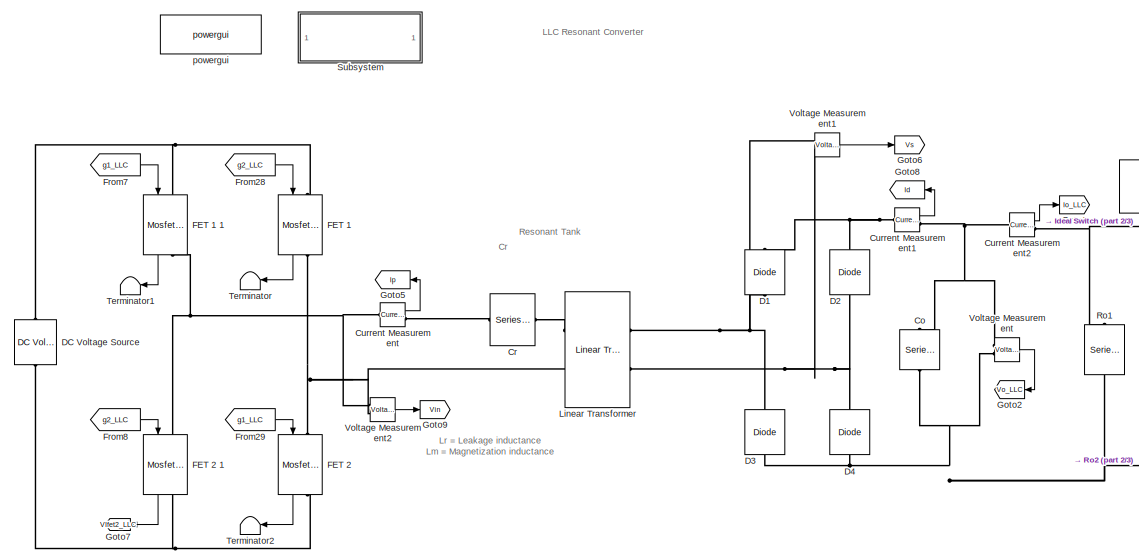
[diagram: root canvas - part 1/3, central region]
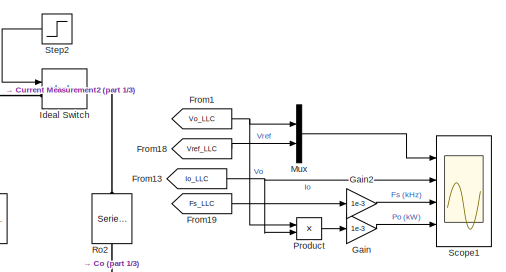
[diagram: root canvas - part 2/3, middle right region]
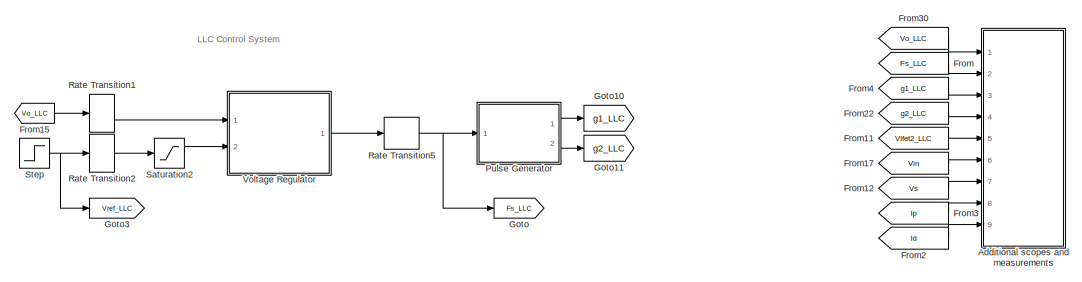
[diagram: root canvas - part 3/3, bottom center region]
MODEL slx_c3d7293f107d
KIND model
CONFIG AbsTol = auto
CONFIG EnableMultiTasking = on
CONFIG FixedStep = Ts_Power
CONFIG MaxStep = 1e-7
CONFIG MinStep = auto
CONFIG PreLoadFcn = LLC_Resonant_Converter_v1_data\n
CONFIG RelTol = 1e-4
CONFIG SampleTimeConstraint = Unconstrained
CONFIG SolverName = FixedStepDiscrete
CONFIG StartTime = 0.0
CONFIG StopTime = 0.3
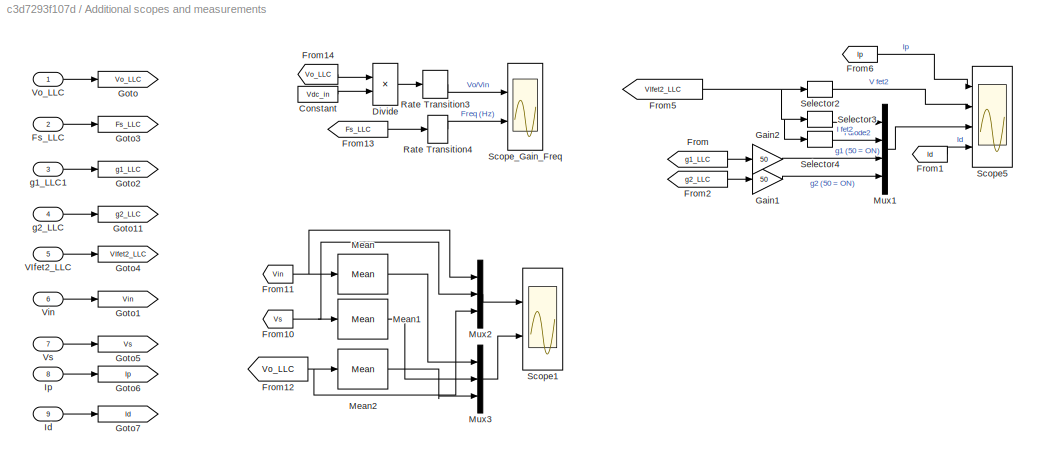
BLOCK [SubSystem] Additional scopes and measurements
  Ports = [9]
BLOCK [Constant] Additional scopes and measurements/Constant
  Value = Vdc_in
BLOCK [Product] Additional scopes and measurements/Divide
  Inputs = */
  Ports = [2, 1]
BLOCK [From] Additional scopes and measurements/From
  GotoTag = g1_LLC
BLOCK [From] Additional scopes and measurements/From1
  GotoTag = Id
BLOCK [From] Additional scopes and measurements/From10
  GotoTag = Vs
BLOCK [From] Additional scopes and measurements/From11
  GotoTag = Vin
BLOCK [From] Additional scopes and measurements/From12
  GotoTag = Vo_LLC
BLOCK [From] Additional scopes and measurements/From13
  GotoTag = Fs_LLC
BLOCK [From] Additional scopes and measurements/From14
  GotoTag = Vo_LLC
BLOCK [From] Additional scopes and measurements/From2
  GotoTag = g2_LLC
BLOCK [From] Additional scopes and measurements/From5
  GotoTag = VIfet2_LLC
BLOCK [From] Additional scopes and measurements/From6
  GotoTag = Ip
BLOCK [Inport] Additional scopes and measurements/Fs_LLC
  Port = 2
BLOCK [Gain] Additional scopes and measurements/Gain1
  Gain = 50
BLOCK [Gain] Additional scopes and measurements/Gain2
  Gain = 50
BLOCK [Goto] Additional scopes and measurements/Goto
  GotoTag = Vo_LLC
BLOCK [Goto] Additional scopes and measurements/Goto1
  GotoTag = Vin
BLOCK [Goto] Additional scopes and measurements/Goto11
  GotoTag = g2_LLC
BLOCK [Goto] Additional scopes and measurements/Goto2
  GotoTag = g1_LLC
BLOCK [Goto] Additional scopes and measurements/Goto3
  GotoTag = Fs_LLC
BLOCK [Goto] Additional scopes and measurements/Goto4
  GotoTag = VIfet2_LLC
BLOCK [Goto] Additional scopes and measurements/Goto5
  GotoTag = Vs
BLOCK [Goto] Additional scopes and measurements/Goto6
  GotoTag = Ip
BLOCK [Goto] Additional scopes and measurements/Goto7
  GotoTag = Id
BLOCK [Inport] Additional scopes and measurements/Id
  Port = 9
BLOCK [Inport] Additional scopes and measurements/Ip
  Port = 8
BLOCK [Reference] Additional scopes and measurements/Mean  REF=spsMeanLib/Mean
  Ports = [1, 1]
  SourceBlock = spsMeanLib/Mean
  SourceType = Mean
BLOCK [Reference] Additional scopes and measurements/Mean1  REF=spsMeanLib/Mean
  Ports = [1, 1]
  SourceBlock = spsMeanLib/Mean
  SourceType = Mean
BLOCK [Reference] Additional scopes and measurements/Mean2  REF=spsMeanLib/Mean
  Ports = [1, 1]
  SourceBlock = spsMeanLib/Mean
  SourceType = Mean
BLOCK [Mux] Additional scopes and measurements/Mux1
  DisplayOption = bar
  Ports = [4, 1]
BLOCK [Mux] Additional scopes and measurements/Mux2
  DisplayOption = bar
  Inputs = 3
  Ports = [3, 1]
BLOCK [Mux] Additional scopes and measurements/Mux3
  DisplayOption = bar
  Inputs = 3
  Ports = [3, 1]
BLOCK [RateTransition] Additional scopes and measurements/Rate Transition3
  OutPortSampleTime = Ts_Power*100
BLOCK [RateTransition] Additional scopes and measurements/Rate Transition4
  OutPortSampleTime = Ts_Power*100
BLOCK [Scope] Additional scopes and measurements/Scope1
  Floating = off
  NumInputPorts = 2
  Ports = [2]
  ScopeSpecificationString = Simulink.scopes.TimeScopeBlockCfg('CurrentConfiguration', extmgr.ConfigurationSet(extmgr.Configuration('Core','General UI',true),extmgr.Configuration('Core','Source UI',true),extmgr.Configuration('Sources','WiredSimulink',true,'DataLoggingVariableName','ScopeData1','DataLoggingDecimation','10'),extmgr.Configuration('Visuals','Time Domain',true,'SerializedDisplays',{struct('MinYLimReal','-856.17057...<+2117ch>
BLOCK [Scope] Additional scopes and measurements/Scope5
  Floating = off
  NumInputPorts = 4
  Ports = [4]
  ScopeSpecificationString = Simulink.scopes.TimeScopeBlockCfg('CurrentConfiguration', extmgr.ConfigurationSet(extmgr.Configuration('Core','General UI',true),extmgr.Configuration('Core','Source UI',true),extmgr.Configuration('Sources','WiredSimulink',true,'DataLoggingVariableName','ScopeData1','DataLoggingDecimation','1','DataLoggingSaveFormat','StructureWithTime'),extmgr.Configuration('Visuals','Time Domain',true,'Serialized...<+4239ch>
BLOCK [Scope] Additional scopes and measurements/Scope_Gain_Freq
  Floating = off
  NumInputPorts = 2
  Ports = [2]
  ScopeSpecificationString = Simulink.scopes.TimeScopeBlockCfg('CurrentConfiguration', extmgr.ConfigurationSet(extmgr.Configuration('Core','General UI',true),extmgr.Configuration('Core','Source UI',true),extmgr.Configuration('Sources','WiredSimulink',true,'DataLoggingVariableName','ScopeData2','DataLoggingDecimation','10','DataLoggingSaveFormat','StructureWithTime'),extmgr.Configuration('Visuals','Time Domain',true,'Serialize...<+2152ch>
BLOCK [Selector] Additional scopes and measurements/Selector2
  IndexOptions = Index vector (dialog)
  Indices = 2
  InputPortWidth = 3
  OutputSizes = 1
  Ports = [1, 1]
BLOCK [Selector] Additional scopes and measurements/Selector3
  IndexOptions = Index vector (dialog)
  Indices = 1
  InputPortWidth = 3
  OutputSizes = 1
  Ports = [1, 1]
BLOCK [Selector] Additional scopes and measurements/Selector4
  IndexOptions = Index vector (dialog)
  Indices = 3
  InputPortWidth = 3
  OutputSizes = 1
  Ports = [1, 1]
BLOCK [Inport] Additional scopes and measurements/VIfet2_LLC
  Port = 5
BLOCK [Inport] Additional scopes and measurements/Vin
  Port = 6
BLOCK [Inport] Additional scopes and measurements/Vo_LLC
BLOCK [Inport] Additional scopes and measurements/Vs
  Port = 7
BLOCK [Inport] Additional scopes and measurements/g1_LLC1
  Port = 3
BLOCK [Inport] Additional scopes and measurements/g2_LLC
  Port = 4
BLOCK [Reference] Co  REF=spsSeriesRLCBranchLib/Series RLC Branch
  NameLocation = left
  Ports = [0, 0, 0, 0, 0, 1, 1]
  SourceBlock = spsSeriesRLCBranchLib/Series RLC Branch
  SourceType = Series RLC Branch
BLOCK [Reference] Cr  REF=spsSeriesRLCBranchLib/Series RLC Branch
  NameLocation = top
  Ports = [0, 0, 0, 0, 0, 1, 1]
  SourceBlock = spsSeriesRLCBranchLib/Series RLC Branch
  SourceType = Series RLC Branch
BLOCK [Reference] Current Measurement  REF=spsCurrentMeasurementLib/Current Measurement
  Ports = [0, 1, 0, 0, 0, 1, 1]
  SourceBlock = spsCurrentMeasurementLib/Current Measurement
  SourceType = Current Measurement
  UserDataPersistent = on
BLOCK [Reference] Current Measurement1  REF=spsCurrentMeasurementLib/Current Measurement
  Ports = [0, 1, 0, 0, 0, 1, 1]
  SourceBlock = spsCurrentMeasurementLib/Current Measurement
  SourceType = Current Measurement
  UserDataPersistent = on
BLOCK [Reference] Current Measurement2  REF=spsCurrentMeasurementLib/Current Measurement
  Ports = [0, 1, 0, 0, 0, 1, 1]
  SourceBlock = spsCurrentMeasurementLib/Current Measurement
  SourceType = Current Measurement
  UserDataPersistent = on
BLOCK [Reference] D1  REF=spsDiodeLib/Diode
  NameLocation = left
  Ports = [0, 0, 0, 0, 0, 1, 1]
  SourceBlock = spsDiodeLib/Diode
  SourceType = Diode
BLOCK [Reference] D2  REF=spsDiodeLib/Diode
  NameLocation = left
  Ports = [0, 0, 0, 0, 0, 1, 1]
  SourceBlock = spsDiodeLib/Diode
  SourceType = Diode
BLOCK [Reference] D3  REF=spsDiodeLib/Diode
  NameLocation = left
  Ports = [0, 0, 0, 0, 0, 1, 1]
  SourceBlock = spsDiodeLib/Diode
  SourceType = Diode
BLOCK [Reference] D4  REF=spsDiodeLib/Diode
  NameLocation = left
  Ports = [0, 0, 0, 0, 0, 1, 1]
  SourceBlock = spsDiodeLib/Diode
  SourceType = Diode
BLOCK [Reference] DC Voltage Source  REF=spsDCVoltageSourceLib/DC Voltage Source
  Ports = [0, 0, 0, 0, 0, 1, 1]
  SourceBlock = spsDCVoltageSourceLib/DC Voltage Source
  SourceType = DC Voltage Source
BLOCK [Reference] FET 1   REF=MyLibrary/Mosfet (custom)
  NameLocation = left
  Ports = [1, 1, 0, 0, 0, 1, 1]
  SourceBlock = MyLibrary/Mosfet (custom)
  SourceType = Custom FET
BLOCK [Reference] FET 1 1  REF=MyLibrary/Mosfet (custom)
  NameLocation = left
  Ports = [1, 1, 0, 0, 0, 1, 1]
  SourceBlock = MyLibrary/Mosfet (custom)
  SourceType = Custom FET
BLOCK [Reference] FET 2   REF=MyLibrary/Mosfet (custom)
  NameLocation = left
  Ports = [1, 1, 0, 0, 0, 1, 1]
  SourceBlock = MyLibrary/Mosfet (custom)
  SourceType = Custom FET
BLOCK [Reference] FET 2 1  REF=MyLibrary/Mosfet (custom)
  NameLocation = left
  Ports = [1, 1, 0, 0, 0, 1, 1]
  SourceBlock = MyLibrary/Mosfet (custom)
  SourceType = Custom FET
BLOCK [From] From
  GotoTag = Fs_LLC
BLOCK [From] From1
  GotoTag = Vo_LLC
BLOCK [From] From11
  GotoTag = VIfet2_LLC
BLOCK [From] From12
  GotoTag = Vs
BLOCK [From] From13
  GotoTag = Io_LLC
BLOCK [From] From15
  GotoTag = Vo_LLC
BLOCK [From] From17
  GotoTag = Vin
BLOCK [From] From18
  GotoTag = Vref_LLC
BLOCK [From] From19
  GotoTag = Fs_LLC
BLOCK [From] From2
  GotoTag = Id
BLOCK [From] From22
  GotoTag = g2_LLC
BLOCK [From] From28
  GotoTag = g2_LLC
BLOCK [From] From29
  GotoTag = g1_LLC
BLOCK [From] From3
  GotoTag = Ip
BLOCK [From] From30
  GotoTag = Vo_LLC
BLOCK [From] From4
  GotoTag = g1_LLC
BLOCK [From] From7
  GotoTag = g1_LLC
BLOCK [From] From8
  GotoTag = g2_LLC
BLOCK [Gain] Gain
  Gain = 1e-3
BLOCK [Gain] Gain2
  Gain = 1e-3
BLOCK [Goto] Goto
  GotoTag = Fs_LLC
BLOCK [Goto] Goto1
  GotoTag = Io_LLC
BLOCK [Goto] Goto10
  GotoTag = g1_LLC
BLOCK [Goto] Goto11
  GotoTag = g2_LLC
BLOCK [Goto] Goto2
  GotoTag = Vo_LLC
BLOCK [Goto] Goto3
  GotoTag = Vref_LLC
BLOCK [Goto] Goto5
  GotoTag = Ip
BLOCK [Goto] Goto6
  GotoTag = Vs
BLOCK [Goto] Goto7
  GotoTag = VIfet2_LLC
BLOCK [Goto] Goto8
  GotoTag = Id
BLOCK [Goto] Goto9
  GotoTag = Vin
BLOCK [Reference] Ideal Switch  REF=spsIdealSwitchLib/Ideal Switch
  Ports = [1, 0, 0, 0, 0, 1, 1]
  SourceBlock = spsIdealSwitchLib/Ideal Switch
  SourceType = Ideal Switch
BLOCK [Reference] Linear Transformer  REF=spsLinearTransformerLib/Linear Transformer
  Ports = [0, 0, 0, 0, 0, 2, 2]
  SourceBlock = spsLinearTransformerLib/Linear Transformer
  SourceType = Linear Transformer
BLOCK [Mux] Mux
  DisplayOption = bar
  Inputs = 2
  Ports = [2, 1]
BLOCK [Product] Product
  Ports = [2, 1]
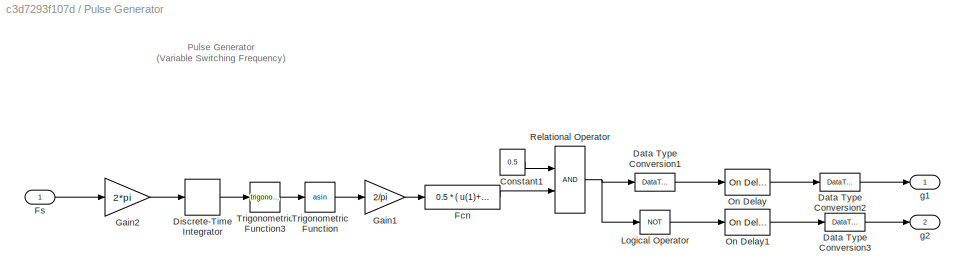
BLOCK [SubSystem] Pulse Generator
  Ports = [1, 2]
BLOCK [Constant] Pulse Generator/Constant1
  Value = 0.5
BLOCK [DataTypeConversion] Pulse Generator/Data Type Conversion1
  OutDataTypeStr = double
  RndMeth = Floor
  SaturateOnIntegerOverflow = off
BLOCK [DataTypeConversion] Pulse Generator/Data Type Conversion2
  OutDataTypeStr = double
  RndMeth = Floor
  SaturateOnIntegerOverflow = off
BLOCK [DataTypeConversion] Pulse Generator/Data Type Conversion3
  OutDataTypeStr = double
  RndMeth = Floor
  SaturateOnIntegerOverflow = off
BLOCK [DiscreteIntegrator] Pulse Generator/Discrete-Time Integrator
  ICPrevOutput = DiscIntNeverNeededParam
  ICPrevScaledInput = DiscIntNeverNeededParam
  InitialConditionSetting = Auto
  Ports = [1, 1]
  SampleTime = Ts_Power
BLOCK [Fcn] Pulse Generator/Fcn
  Expr = 0.5 * ( u(1)+1 )
BLOCK [Inport] Pulse Generator/Fs
BLOCK [Gain] Pulse Generator/Gain1
  Gain = 2/pi
  OutDataTypeStr = Inherit: Same as input
  ParamDataTypeStr = Inherit: Same as input
  SaturateOnIntegerOverflow = on
BLOCK [Gain] Pulse Generator/Gain2
  Gain = 2*pi
  OutDataTypeStr = Inherit: Same as input
  ParamDataTypeStr = Inherit: Same as input
  SaturateOnIntegerOverflow = on
BLOCK [Logic] Pulse Generator/Logical Operator
  AllPortsSameDT = off
  Operator = NOT
  OutDataTypeStr = float('double')
  Ports = [1, 1]
BLOCK [Reference] Pulse Generator/On Delay  REF=spsOnDelayLib/On Delay
  NameLocation = top
  Ports = [1, 1]
  SourceBlock = spsOnDelayLib/On Delay
  SourceType = On/Off Delay
BLOCK [Reference] Pulse Generator/On Delay1  REF=spsOnDelayLib/On Delay
  NameLocation = top
  Ports = [1, 1]
  SourceBlock = spsOnDelayLib/On Delay
  SourceType = On/Off Delay
BLOCK [RelationalOperator] Pulse Generator/Relational Operator
  InputSameDT = off
  OutDataTypeStr = boolean
  Ports = [2, 1]
BLOCK [Trigonometry] Pulse Generator/Trigonometric Function
  Operator = asin
  Ports = [1, 1]
BLOCK [Trigonometry] Pulse Generator/Trigonometric Function3
  Ports = [1, 1]
BLOCK [Outport] Pulse Generator/g1
  VectorParamsAs1DForOutWhenUnconnected = off
BLOCK [Outport] Pulse Generator/g2
  Port = 2
  VectorParamsAs1DForOutWhenUnconnected = off
BLOCK [RateTransition] Rate Transition1
  NameLocation = right
  OutPortSampleTime = Ts_Control
BLOCK [RateTransition] Rate Transition2
  NameLocation = right
  OutPortSampleTime = Ts_Control
BLOCK [RateTransition] Rate Transition5
  InitialCondition = fs_LCC_min
  OutPortSampleTime = Ts_Power
BLOCK [Reference] Ro1  REF=spsSeriesRLCBranchLib/Series RLC Branch
  NameLocation = left
  Ports = [0, 0, 0, 0, 0, 1, 1]
  SourceBlock = spsSeriesRLCBranchLib/Series RLC Branch
  SourceType = Series RLC Branch
BLOCK [Reference] Ro2  REF=spsSeriesRLCBranchLib/Series RLC Branch
  NameLocation = left
  Ports = [0, 0, 0, 0, 0, 1, 1]
  SourceBlock = spsSeriesRLCBranchLib/Series RLC Branch
  SourceType = Series RLC Branch
BLOCK [Saturate] Saturation2
  LowerLimit = 275
  UpperLimit = 450
BLOCK [Scope] Scope1
  Floating = off
  NumInputPorts = 4
  Ports = [4]
  ScopeSpecificationString = Simulink.scopes.TimeScopeBlockCfg('CurrentConfiguration', extmgr.ConfigurationSet(extmgr.Configuration('Core','General UI',true),extmgr.Configuration('Core','Source UI',true),extmgr.Configuration('Sources','WiredSimulink',true,'DataLoggingVariableName','ScopeData1','DataLoggingDecimation','10'),extmgr.Configuration('Visuals','Time Domain',true,'SerializedDisplays',{struct('MinYLimReal','337.79577'...<+4020ch>
BLOCK [Step] Step
  After = 400
  Before = 350
  SampleTime = Ts_Power
  Time = 0.1
BLOCK [Step] Step2
  After = 0
  Before = 1
  SampleTime = Ts_Power
  Time = 0.2
BLOCK [SubSystem] Subsystem
  OpenFcn = edit('LLC_Resonant_Converter_v1_data');
  Ports = []
BLOCK [Terminator] Terminator
BLOCK [Terminator] Terminator1
BLOCK [Terminator] Terminator2
BLOCK [Reference] Voltage Measurement  REF=spsVoltageMeasurementLib/Voltage Measurement
  Ports = [0, 1, 0, 0, 0, 2]
  SourceBlock = spsVoltageMeasurementLib/Voltage Measurement
  SourceType = Voltage Measurement
  UserDataPersistent = on
BLOCK [Reference] Voltage Measurement1  REF=spsVoltageMeasurementLib/Voltage Measurement
  Ports = [0, 1, 0, 0, 0, 2]
  SourceBlock = spsVoltageMeasurementLib/Voltage Measurement
  SourceType = Voltage Measurement
  UserDataPersistent = on
BLOCK [Reference] Voltage Measurement2  REF=spsVoltageMeasurementLib/Voltage Measurement
  Ports = [0, 1, 0, 0, 0, 2]
  SourceBlock = spsVoltageMeasurementLib/Voltage Measurement
  SourceType = Voltage Measurement
  UserDataPersistent = on
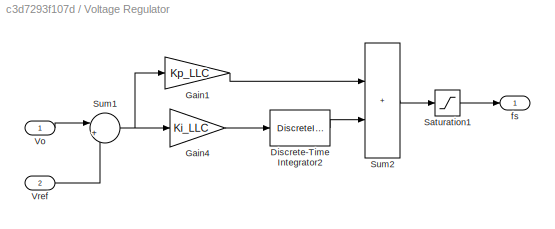
BLOCK [SubSystem] Voltage Regulator
  Ports = [2, 1]
BLOCK [DiscreteIntegrator] Voltage Regulator/Discrete-Time Integrator2
  ICPrevOutput = DiscIntNeverNeededParam
  ICPrevScaledInput = DiscIntNeverNeededParam
  InitialCondition = fs_LCC_min
  InitialConditionSetting = Auto
  LimitOutput = on
  LowerSaturationLimit = fs_LCC_min
  Ports = [1, 1]
  SampleTime = Ts_Control
  UpperSaturationLimit = fs_LCC_max
BLOCK [Gain] Voltage Regulator/Gain1
  Gain = Kp_LLC
  OutDataTypeStr = Inherit: Same as input
  ParamDataTypeStr = Inherit: Same as input
  SaturateOnIntegerOverflow = on
BLOCK [Gain] Voltage Regulator/Gain4
  Gain = Ki_LLC
  OutDataTypeStr = Inherit: Same as input
  ParamDataTypeStr = Inherit: Same as input
  SaturateOnIntegerOverflow = on
BLOCK [Saturate] Voltage Regulator/Saturation1
  LowerLimit = fs_LCC_min
  UpperLimit = fs_LCC_max
BLOCK [Sum] Voltage Regulator/Sum1
  InputSameDT = on
  Inputs = |+-
  NameLocation = top
  OutDataTypeStr = Inherit: Same as first input
  Ports = [2, 1]
  SaturateOnIntegerOverflow = on
BLOCK [Sum] Voltage Regulator/Sum2
  IconShape = rectangular
  InputSameDT = on
  OutDataTypeStr = Inherit: Same as first input
  Ports = [2, 1]
  SaturateOnIntegerOverflow = on
BLOCK [Inport] Voltage Regulator/Vo
  NameLocation = top
BLOCK [Inport] Voltage Regulator/Vref
  Port = 2
BLOCK [Outport] Voltage Regulator/fs
  VectorParamsAs1DForOutWhenUnconnected = off
BLOCK [Reference] powergui  REF=spspowerguiLib/powergui
  Ports = []
  Priority = 1
  SourceBlock = spspowerguiLib/powergui
  SourceType = PSB option menu block
ANNOTATION (root): Cr
ANNOTATION (root): LLC Control System
ANNOTATION (root): Lr = Leakage inductance Lm = Magnetization inductance
ANNOTATION (root): Resonant Tank
ANNOTATION (root): LLC Resonant Converter
ANNOTATION Pulse Generator: Pulse Generator (Variable Switching Frequency)
LINE Additional scopes and measurements/Constant:1 -> Additional scopes and measurements/Divide:2
LINE Additional scopes and measurements/Divide:1 -> Additional scopes and measurements/Rate Transition3:1
NET Additional scopes and measurements/From10:1 -> Additional scopes and measurements/Mean1:1, Additional scopes and measurements/Mux2:2
NET Additional scopes and measurements/From11:1 -> Additional scopes and measurements/Mean:1, Additional scopes and measurements/Mux2:1
NET Additional scopes and measurements/From12:1 -> Additional scopes and measurements/Mean2:1, Additional scopes and measurements/Mux2:3
LINE Additional scopes and measurements/From13:1 -> Additional scopes and measurements/Rate Transition4:1
LINE Additional scopes and measurements/From14:1 -> Additional scopes and measurements/Divide:1
LINE Additional scopes and measurements/From1:1 -> Additional scopes and measurements/Scope5:4
LINE Additional scopes and measurements/From2:1 -> Additional scopes and measurements/Gain1:1
NET Additional scopes and measurements/From5:1 -> Additional scopes and measurements/Selector2:1, Additional scopes and measurements/Selector3:1, Additional scopes and measurements/Selector4:1
LINE Additional scopes and measurements/From6:1 -> Additional scopes and measurements/Scope5:1
LINE Additional scopes and measurements/From:1 -> Additional scopes and measurements/Gain2:1
LINE Additional scopes and measurements/Fs_LLC:1 -> Additional scopes and measurements/Goto3:1
LINE Additional scopes and measurements/Gain1:1 -> Additional scopes and measurements/Mux1:4
LINE Additional scopes and measurements/Gain2:1 -> Additional scopes and measurements/Mux1:3
LINE Additional scopes and measurements/Id:1 -> Additional scopes and measurements/Goto7:1
LINE Additional scopes and measurements/Ip:1 -> Additional scopes and measurements/Goto6:1
LINE Additional scopes and measurements/Mean1:1 -> Additional scopes and measurements/Mux3:2
LINE Additional scopes and measurements/Mean2:1 -> Additional scopes and measurements/Mux3:3
LINE Additional scopes and measurements/Mean:1 -> Additional scopes and measurements/Mux3:1
LINE Additional scopes and measurements/Mux1:1 -> Additional scopes and measurements/Scope5:3
LINE Additional scopes and measurements/Mux2:1 -> Additional scopes and measurements/Scope1:1
LINE Additional scopes and measurements/Mux3:1 -> Additional scopes and measurements/Scope1:2
LINE Additional scopes and measurements/Rate Transition3:1 -> Additional scopes and measurements/Scope_Gain_Freq:1
LINE Additional scopes and measurements/Rate Transition4:1 -> Additional scopes and measurements/Scope_Gain_Freq:2
LINE Additional scopes and measurements/Selector2:1 -> Additional scopes and measurements/Scope5:2
LINE Additional scopes and measurements/Selector3:1 -> Additional scopes and measurements/Mux1:1
LINE Additional scopes and measurements/Selector4:1 -> Additional scopes and measurements/Mux1:2
LINE Additional scopes and measurements/VIfet2_LLC:1 -> Additional scopes and measurements/Goto4:1
LINE Additional scopes and measurements/Vin:1 -> Additional scopes and measurements/Goto1:1
LINE Additional scopes and measurements/Vo_LLC:1 -> Additional scopes and measurements/Goto:1
LINE Additional scopes and measurements/Vs:1 -> Additional scopes and measurements/Goto5:1
LINE Additional scopes and measurements/g1_LLC1:1 -> Additional scopes and measurements/Goto2:1
LINE Additional scopes and measurements/g2_LLC:1 -> Additional scopes and measurements/Goto11:1
LINE Current Measurement1:1 -> Goto8:1
LINE Current Measurement2:1 -> Goto1:1
LINE Current Measurement:1 -> Goto5:1
LINE FET 1 1:1 -> Terminator1:1
LINE FET 1 :1 -> Terminator:1
LINE FET 2 1:1 -> Goto7:1
LINE FET 2 :1 -> Terminator2:1
LINE From11:1 -> Additional scopes and measurements:5
LINE From12:1 -> Additional scopes and measurements:7
NET From13:1 -> Product:2, Scope1:2
LINE From15:1 -> Rate Transition1:1
LINE From17:1 -> Additional scopes and measurements:6
LINE From18:1 -> Mux:2
LINE From19:1 -> Gain2:1
NET From1:1 -> Mux:1, Product:1
LINE From22:1 -> Additional scopes and measurements:4
LINE From28:1 -> FET 1 :1
LINE From29:1 -> FET 2 :1
LINE From2:1 -> Additional scopes and measurements:9
LINE From30:1 -> Additional scopes and measurements:1
LINE From3:1 -> Additional scopes and measurements:8
LINE From4:1 -> Additional scopes and measurements:3
LINE From7:1 -> FET 1 1:1
LINE From8:1 -> FET 2 1:1
LINE From:1 -> Additional scopes and measurements:2
LINE Gain2:1 -> Scope1:3
LINE Gain:1 -> Scope1:4
LINE Mux:1 -> Scope1:1
LINE Product:1 -> Gain:1
LINE Pulse Generator/Constant1:1 -> Pulse Generator/Relational Operator:1
LINE Pulse Generator/Data Type Conversion1:1 -> Pulse Generator/On Delay:1
LINE Pulse Generator/Data Type Conversion2:1 -> Pulse Generator/g1:1
LINE Pulse Generator/Data Type Conversion3:1 -> Pulse Generator/g2:1
LINE Pulse Generator/Discrete-Time Integrator:1 -> Pulse Generator/Trigonometric Function3:1
LINE Pulse Generator/Fcn:1 -> Pulse Generator/Relational Operator:2
LINE Pulse Generator/Fs:1 -> Pulse Generator/Gain2:1
LINE Pulse Generator/Gain1:1 -> Pulse Generator/Fcn:1
LINE Pulse Generator/Gain2:1 -> Pulse Generator/Discrete-Time Integrator:1
LINE Pulse Generator/Logical Operator:1 -> Pulse Generator/On Delay1:1
LINE Pulse Generator/On Delay1:1 -> Pulse Generator/Data Type Conversion3:1
LINE Pulse Generator/On Delay:1 -> Pulse Generator/Data Type Conversion2:1
NET Pulse Generator/Relational Operator:1 -> Pulse Generator/Data Type Conversion1:1, Pulse Generator/Logical Operator:1
LINE Pulse Generator/Trigonometric Function3:1 -> Pulse Generator/Trigonometric Function:1
LINE Pulse Generator/Trigonometric Function:1 -> Pulse Generator/Gain1:1
LINE Pulse Generator:1 -> Goto10:1
LINE Pulse Generator:2 -> Goto11:1
LINE Rate Transition1:1 -> Voltage Regulator:1
LINE Rate Transition2:1 -> Saturation2:1
NET Rate Transition5:1 -> Goto:1, Pulse Generator:1
LINE Saturation2:1 -> Voltage Regulator:2
LINE Step2:1 -> Ideal Switch:1
NET Step:1 -> Goto3:1, Rate Transition2:1
LINE Voltage Measurement1:1 -> Goto6:1
LINE Voltage Measurement2:1 -> Goto9:1
LINE Voltage Measurement:1 -> Goto2:1
LINE Voltage Regulator/Discrete-Time Integrator2:1 -> Voltage Regulator/Sum2:2
LINE Voltage Regulator/Gain1:1 -> Voltage Regulator/Sum2:1
LINE Voltage Regulator/Gain4:1 -> Voltage Regulator/Discrete-Time Integrator2:1
LINE Voltage Regulator/Saturation1:1 -> Voltage Regulator/fs:1
NET Voltage Regulator/Sum1:1 -> Voltage Regulator/Gain1:1, Voltage Regulator/Gain4:1
LINE Voltage Regulator/Sum2:1 -> Voltage Regulator/Saturation1:1
LINE Voltage Regulator/Vo:1 -> Voltage Regulator/Sum1:1
LINE Voltage Regulator/Vref:1 -> Voltage Regulator/Sum1:2
LINE Voltage Regulator:1 -> Rate Transition5:1
PNET net1: Co:LConn1 -- Current Measurement1:RConn1 -- Current Measurement2:LConn1 -- Voltage Measurement:LConn1
PNET net2: Co:RConn1 -- D3:LConn1 -- D4:LConn1 -- Ro1:RConn1 -- Ro2:RConn1 -- Voltage Measurement:LConn2
PLINE Cr:LConn1 -- Current Measurement:RConn1
PLINE Cr:RConn1 -- Linear Transformer:LConn1
PNET net3: Current Measurement1:LConn1 -- D1:RConn1 -- D2:RConn1
PNET net4: Current Measurement2:RConn1 -- Ideal Switch:LConn1 -- Ro1:LConn1
PNET net5: Current Measurement:LConn1 -- FET 1 1:RConn1 -- FET 2 1:LConn1 -- Voltage Measurement2:LConn1
PNET net6: D1:LConn1 -- D3:RConn1 -- Linear Transformer:RConn1 -- Voltage Measurement1:LConn1
PNET net7: D2:LConn1 -- D4:RConn1 -- Linear Transformer:RConn2 -- Voltage Measurement1:LConn2
PNET net8: DC Voltage Source:LConn1 -- FET 2 1:RConn1 -- FET 2 :RConn1
PNET net9: DC Voltage Source:RConn1 -- FET 1 1:LConn1 -- FET 1 :LConn1
PNET net10: FET 1 :RConn1 -- FET 2 :LConn1 -- Linear Transformer:LConn2 -- Voltage Measurement2:LConn2
PLINE Ideal Switch:RConn1 -- Ro2:LConn1
note: NET lines group one-source signal fan-out (src -> all destinations, sorted); 1:1 wires keep LINE; PNET lines group multi-terminal physical nets as a canonical sorted terminal list (undirected conserving connections); 2-terminal nets keep the pairwise PLINE form
